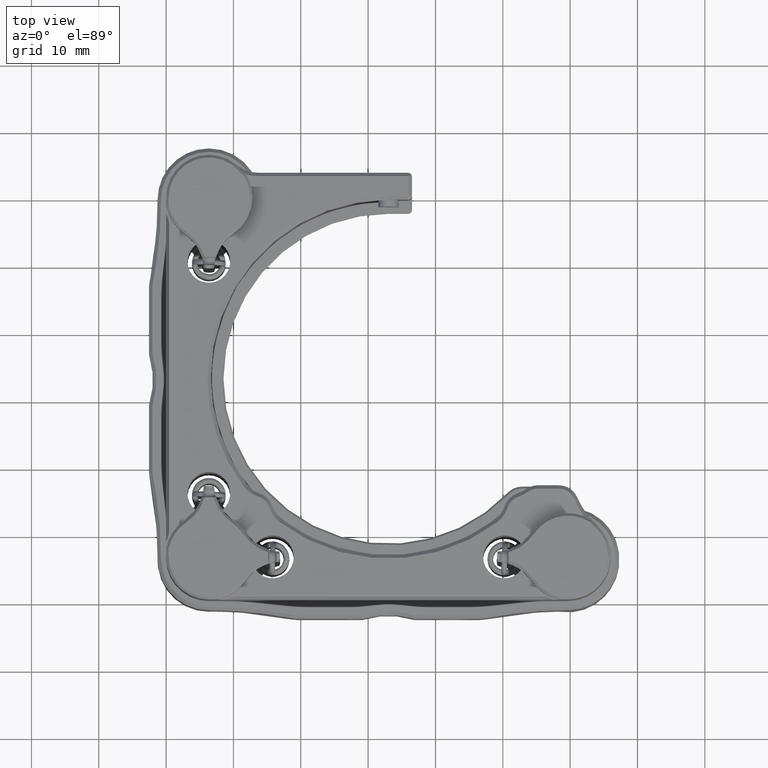
[diagram: clean part render]
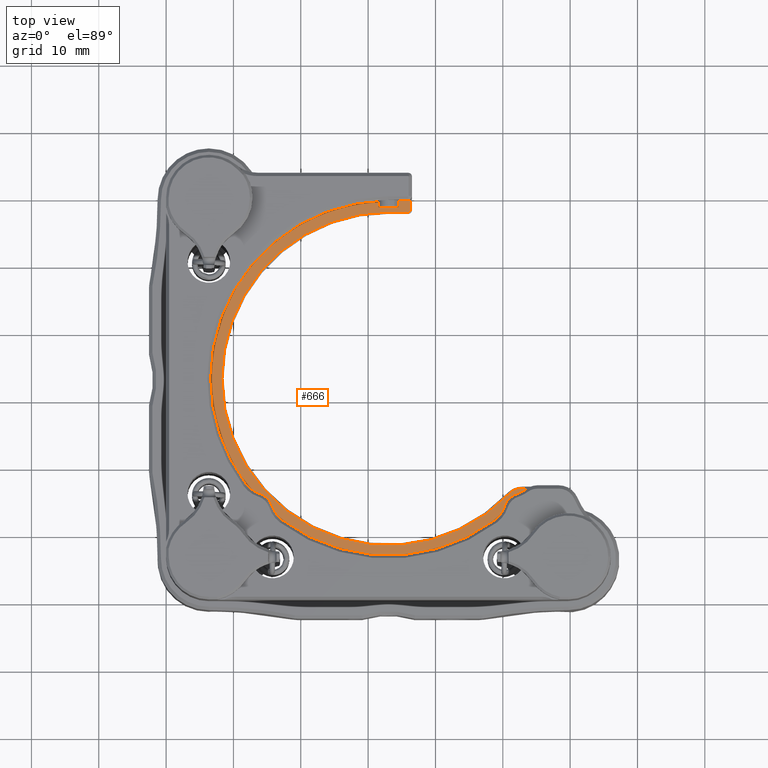
[diagram: same view with one face highlighted and labeled with its STEP entity id]
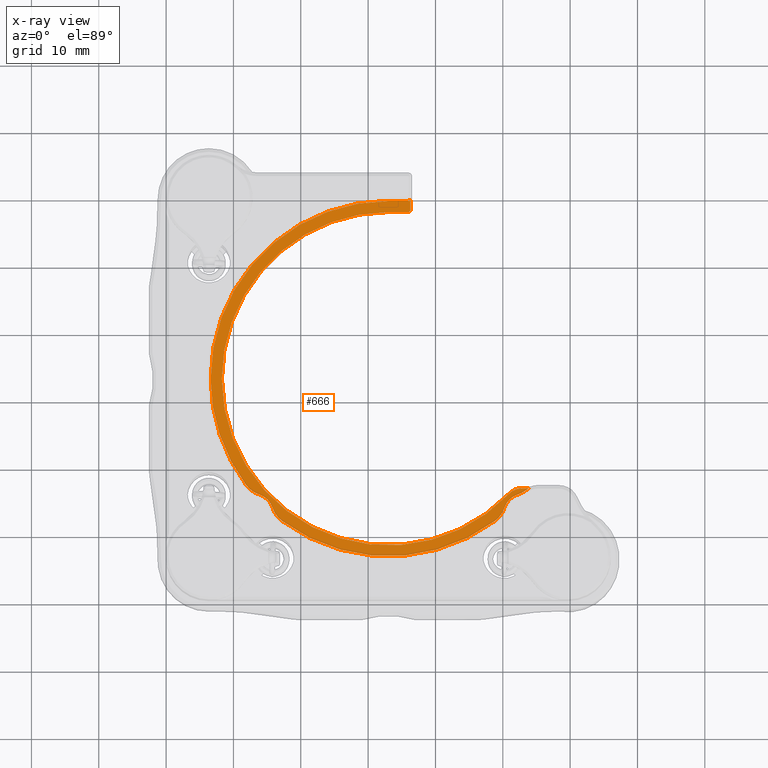
[diagram: x-ray of the same camera — body ghosted, the highlighted face saturated]
A machine part, top view. The second image highlights one B-rep face of the part: STEP entity #666.
The next image is the same camera in x-ray: the body ghosted, the highlighted face saturated — about 0% of this face is hidden behind the body in this view.
In plain terms, the highlighted planar face has unit normal (0, 0, -1).
Its self-contained STEP definition (entity closure, byte-faithful):
#115 = EDGE_CURVE ( 'NONE', #711, #24314, #26546, .T. ) ;
#204 = CARTESIAN_POINT ( 'NONE',  ( -40.66343117310604072, 65.37924649506375374, 40.77856876018478971 ) ) ;
#661 = CARTESIAN_POINT ( 'NONE',  ( -43.56343117310596114, 67.02924649506375943, 40.77856876018478971 ) ) ;
#666 = ADVANCED_FACE ( 'NONE', ( #8977 ), #9119, .F. ) ;
#667 = ORIENTED_EDGE ( 'NONE', *, *, #22050, .F. ) ;
#711 = VERTEX_POINT ( 'NONE', #13788 ) ;
#807 = ORIENTED_EDGE ( 'NONE', *, *, #26933, .F. ) ;
#868 = CIRCLE ( 'NONE', #1335, 26.39999999999999858 ) ;
#918 = LINE ( 'NONE', #14822, #22953 ) ;
#1026 = DIRECTION ( 'NONE',  ( -1.000000000000000000, 0.000000000000000000, 0.000000000000000000 ) ) ;
#1040 = CARTESIAN_POINT ( 'NONE',  ( -23.43713678394122724, 21.46714300433859535, 40.77856876018478971 ) ) ;
#1118 = VERTEX_POINT ( 'NONE', #24057 ) ;
#1320 = VERTEX_POINT ( 'NONE', #5804 ) ;
#1335 = AXIS2_PLACEMENT_3D ( 'NONE', #9348, #7298, #4962 ) ;
#1341 = AXIS2_PLACEMENT_3D ( 'NONE', #24877, #2983, #9704 ) ;
#1408 = DIRECTION ( 'NONE',  ( -0.000000000000000000, -0.000000000000000000, -1.000000000000000000 ) ) ;
#1659 = ORIENTED_EDGE ( 'NONE', *, *, #13855, .F. ) ;
#2049 = VECTOR ( 'NONE', #2855, 1000.000000000000000 ) ;
#2240 = CARTESIAN_POINT ( 'NONE',  ( -40.66343117310594124, 40.62924649506374664, 40.77856876018478971 ) ) ;
#2301 = DIRECTION ( 'NONE',  ( 0.000000000000000000, 0.000000000000000000, 1.000000000000000000 ) ) ;
#2855 = DIRECTION ( 'NONE',  ( -1.000000000000000000, -7.805279981897899840E-16, 0.000000000000000000 ) ) ;
#2983 = DIRECTION ( 'NONE',  ( 0.000000000000000000, 0.000000000000000000, 1.000000000000000000 ) ) ;
#3117 = EDGE_CURVE ( 'NONE', #26238, #25586, #11966, .T. ) ;
#4242 = CIRCLE ( 'NONE', #20557, 4.000000000000000000 ) ;
#4264 = DIRECTION ( 'NONE',  ( -1.000000000000000000, -1.734723475976807094E-15, 0.000000000000000000 ) ) ;
#4962 = DIRECTION ( 'NONE',  ( -1.000000000000000000, -7.885106708985487062E-16, 0.000000000000000000 ) ) ;
#4963 = EDGE_CURVE ( 'NONE', #10287, #15075, #918, .T. ) ;
#4985 = CARTESIAN_POINT ( 'NONE',  ( -19.52481206542267600, 24.81410241667204986, 40.77856876018478971 ) ) ;
#5008 = AXIS2_PLACEMENT_3D ( 'NONE', #9299, #20824, #12058 ) ;
#5772 = ORIENTED_EDGE ( 'NONE', *, *, #4963, .F. ) ;
#5804 = CARTESIAN_POINT ( 'NONE',  ( -14.26343117310593911, 40.62924649506376795, 40.77856876018478971 ) ) ;
#6192 = ORIENTED_EDGE ( 'NONE', *, *, #8137, .F. ) ;
#6200 = EDGE_CURVE ( 'NONE', #9984, #24850, #15008, .T. ) ;
#6389 = DIRECTION ( 'NONE',  ( 0.000000000000000000, 0.000000000000000000, 1.000000000000000000 ) ) ;
#6394 = ORIENTED_EDGE ( 'NONE', *, *, #3117, .F. ) ;
#6421 = VERTEX_POINT ( 'NONE', #11036 ) ;
#6823 = CARTESIAN_POINT ( 'NONE',  ( -59.83096927332034909, 23.40469681342246488, 40.77856876018478971 ) ) ;
#6832 = DIRECTION ( 'NONE',  ( -1.000000000000000000, -1.261617073437676668E-15, 0.000000000000000000 ) ) ;
#6935 = CIRCLE ( 'NONE', #9729, 4.000000000000000000 ) ;
#6988 = DIRECTION ( 'NONE',  ( 0.000000000000000000, 0.000000000000000000, 1.000000000000000000 ) ) ;
#7298 = DIRECTION ( 'NONE',  ( 0.000000000000000000, 0.000000000000000000, 1.000000000000000000 ) ) ;
#8137 = EDGE_CURVE ( 'NONE', #15075, #26238, #12416, .T. ) ;
#8142 = CARTESIAN_POINT ( 'NONE',  ( -43.56343117310596114, 67.62924649506375374, 40.77856876018478971 ) ) ;
#8635 = DIRECTION ( 'NONE',  ( 0.000000000000000000, 0.000000000000000000, 1.000000000000000000 ) ) ;
#8812 = ORIENTED_EDGE ( 'NONE', *, *, #28173, .F. ) ;
#8977 = FACE_OUTER_BOUND ( 'NONE', #28239, .T. ) ;
#9119 = PLANE ( 'NONE',  #25174 ) ;
#9162 = CARTESIAN_POINT ( 'NONE',  ( -27.24452104598561775, 22.69344846430225360, 40.77856876018478971 ) ) ;
#9260 = VECTOR ( 'NONE', #10891, 1000.000000000000000 ) ;
#9299 = CARTESIAN_POINT ( 'NONE',  ( -60.74526375880390106, 20.54741390936581880, 40.77856876018478971 ) ) ;
#9342 = ORIENTED_EDGE ( 'NONE', *, *, #24324, .F. ) ;
#9348 = CARTESIAN_POINT ( 'NONE',  ( -40.66343117310594124, 40.62924649506374664, 40.77856876018478971 ) ) ;
#9704 = DIRECTION ( 'NONE',  ( -1.000000000000000000, -8.673617379884027583E-16, 0.000000000000000000 ) ) ;
#9729 = AXIS2_PLACEMENT_3D ( 'NONE', #9162, #13985, #27411 ) ;
#9805 = VECTOR ( 'NONE', #13566, 1000.000000000000000 ) ;
#9820 = AXIS2_PLACEMENT_3D ( 'NONE', #23750, #10034, #18970 ) ;
#9984 = VERTEX_POINT ( 'NONE', #661 ) ;
#10034 = DIRECTION ( 'NONE',  ( -0.000000000000000000, -0.000000000000000000, -1.000000000000000000 ) ) ;
#10287 = VERTEX_POINT ( 'NONE', #10456 ) ;
#10456 = CARTESIAN_POINT ( 'NONE',  ( -43.56343117310596824, 65.37924649506375374, 40.77856876018478971 ) ) ;
#10593 = EDGE_CURVE ( 'NONE', #6421, #10287, #13394, .T. ) ;
#10685 = VERTEX_POINT ( 'NONE', #15061 ) ;
#10696 = AXIS2_PLACEMENT_3D ( 'NONE', #13856, #6988, #26993 ) ;
#10891 = DIRECTION ( 'NONE',  ( -1.000000000000000000, -7.805279981897899840E-16, 0.000000000000000000 ) ) ;
#11036 = CARTESIAN_POINT ( 'NONE',  ( -43.91343117310596256, 65.72924649506376227, 40.77856876018478971 ) ) ;
#11154 = DIRECTION ( 'NONE',  ( 0.000000000000000000, 0.000000000000000000, 1.000000000000000000 ) ) ;
#11177 = DIRECTION ( 'NONE',  ( -0.000000000000000000, -0.000000000000000000, -1.000000000000000000 ) ) ;
#11307 = VERTEX_POINT ( 'NONE', #6823 ) ;
#11319 = EDGE_CURVE ( 'NONE', #24416, #16973, #6935, .T. ) ;
#11885 = DIRECTION ( 'NONE',  ( -0.000000000000000000, -0.000000000000000000, -1.000000000000000000 ) ) ;
#11966 = CIRCLE ( 'NONE', #20367, 24.75000000000000000 ) ;
#12058 = DIRECTION ( 'NONE',  ( -1.000000000000000000, -1.156482317317870344E-15, 0.000000000000000000 ) ) ;
#12141 = DIRECTION ( 'NONE',  ( 0.000000000000000000, 0.000000000000000000, 1.000000000000000000 ) ) ;
#12373 = ORIENTED_EDGE ( 'NONE', *, *, #28424, .F. ) ;
#12416 = CIRCLE ( 'NONE', #28295, 24.75000000000000000 ) ;
#12467 = EDGE_CURVE ( 'NONE', #16208, #11307, #24199, .T. ) ;
#13202 = DIRECTION ( 'NONE',  ( 0.000000000000000000, 0.000000000000000000, 1.000000000000000000 ) ) ;
#13339 = CARTESIAN_POINT ( 'NONE',  ( -61.60606211356250839, 24.35924649506373996, 40.77856876018478971 ) ) ;
#13346 = CARTESIAN_POINT ( 'NONE',  ( -40.66343117310594124, 40.62924649506374664, 40.77856876018478971 ) ) ;
#13394 = CIRCLE ( 'NONE', #25489, 0.3500000000000030864 ) ;
#13566 = DIRECTION ( 'NONE',  ( 6.648797664580028115E-16, -1.000000000000000000, 0.000000000000000000 ) ) ;
#13788 = CARTESIAN_POINT ( 'NONE',  ( -57.88972556227060551, 21.46714300433857048, 40.77856876018478971 ) ) ;
#13819 = LINE ( 'NONE', #27113, #2049 ) ;
#13855 = EDGE_CURVE ( 'NONE', #24314, #24416, #868, .T. ) ;
#13856 = CARTESIAN_POINT ( 'NONE',  ( -54.08234130022623987, 22.69344846430223939, 40.77856876018478971 ) ) ;
#13985 = DIRECTION ( 'NONE',  ( 0.000000000000000000, 0.000000000000000000, 1.000000000000000000 ) ) ;
#14325 = CARTESIAN_POINT ( 'NONE',  ( -43.91343117310596256, 67.14190677782330852, 40.77856876018478971 ) ) ;
#14395 = EDGE_CURVE ( 'NONE', #25586, #10685, #25125, .T. ) ;
#14593 = ORIENTED_EDGE ( 'NONE', *, *, #23808, .F. ) ;
#14822 = CARTESIAN_POINT ( 'NONE',  ( -40.66343117310586308, 65.37924649506375374, 40.77856876018478971 ) ) ;
#14885 = CIRCLE ( 'NONE', #5008, 3.000000000000002665 ) ;
#14917 = EDGE_CURVE ( 'NONE', #1118, #9984, #20091, .T. ) ;
#15008 = CIRCLE ( 'NONE', #26190, 0.6000000000000033085 ) ;
#15061 = CARTESIAN_POINT ( 'NONE',  ( -60.52519343127426055, 24.35924649506373996, 40.77856876018478971 ) ) ;
#15075 = VERTEX_POINT ( 'NONE', #204 ) ;
#15576 = ORIENTED_EDGE ( 'NONE', *, *, #11319, .F. ) ;
#15783 = EDGE_CURVE ( 'NONE', #24850, #6421, #26693, .T. ) ;
#15823 = DIRECTION ( 'NONE',  ( -1.000000000000000000, -7.805279981897899840E-16, 0.000000000000000000 ) ) ;
#16208 = VERTEX_POINT ( 'NONE', #22704 ) ;
#16973 = VERTEX_POINT ( 'NONE', #1040 ) ;
#17045 = DIRECTION ( 'NONE',  ( -1.000000000000000000, 0.000000000000000000, 0.000000000000000000 ) ) ;
#17132 = AXIS2_PLACEMENT_3D ( 'NONE', #22134, #19834, #26519 ) ;
#17550 = CARTESIAN_POINT ( 'NONE',  ( -21.50132768238069758, 23.40295210589914632, 40.77856876018478971 ) ) ;
#18052 = CARTESIAN_POINT ( 'NONE',  ( -40.66343117310594124, 40.62924649506374664, 40.77856876018478971 ) ) ;
#18244 = VERTEX_POINT ( 'NONE', #4985 ) ;
#18375 = ORIENTED_EDGE ( 'NONE', *, *, #6200, .F. ) ;
#18970 = DIRECTION ( 'NONE',  ( -1.000000000000000000, -1.156482317317870344E-15, 0.000000000000000000 ) ) ;
#18996 = CIRCLE ( 'NONE', #22681, 26.39999999999999858 ) ;
#19571 = AXIS2_PLACEMENT_3D ( 'NONE', #26401, #2301, #6832 ) ;
#19641 = VERTEX_POINT ( 'NONE', #17550 ) ;
#19694 = DIRECTION ( 'NONE',  ( -1.000000000000000000, -7.885106708985487062E-16, 0.000000000000000000 ) ) ;
#19834 = DIRECTION ( 'NONE',  ( -0.000000000000000000, -0.000000000000000000, -1.000000000000000000 ) ) ;
#20064 = ORIENTED_EDGE ( 'NONE', *, *, #115, .F. ) ;
#20071 = DIRECTION ( 'NONE',  ( -1.000000000000000000, 1.051347561198065007E-15, 0.000000000000000000 ) ) ;
#20082 = CIRCLE ( 'NONE', #9820, 3.000000000000002665 ) ;
#20091 = LINE ( 'NONE', #23888, #9260 ) ;
#20221 = CARTESIAN_POINT ( 'NONE',  ( -43.56343117310596114, 65.72924649506376227, 40.77856876018478971 ) ) ;
#20367 = AXIS2_PLACEMENT_3D ( 'NONE', #25442, #11885, #20778 ) ;
#20557 = AXIS2_PLACEMENT_3D ( 'NONE', #28804, #8635, #4264 ) ;
#20778 = DIRECTION ( 'NONE',  ( -1.000000000000000000, -8.410780489584519664E-16, 0.000000000000000000 ) ) ;
#20824 = DIRECTION ( 'NONE',  ( -0.000000000000000000, -0.000000000000000000, -1.000000000000000000 ) ) ;
#20848 = CIRCLE ( 'NONE', #17132, 3.000000000000002665 ) ;
#21201 = EDGE_CURVE ( 'NONE', #16973, #19641, #20082, .T. ) ;
#21597 = VERTEX_POINT ( 'NONE', #13339 ) ;
#22050 = EDGE_CURVE ( 'NONE', #19641, #18244, #4242, .T. ) ;
#22131 = CARTESIAN_POINT ( 'NONE',  ( -40.66343117310594124, 40.62924649506374664, 40.77856876018478971 ) ) ;
#22134 = CARTESIAN_POINT ( 'NONE',  ( -62.80501999439066907, 21.60924649506373285, 40.77856876018478971 ) ) ;
#22681 = AXIS2_PLACEMENT_3D ( 'NONE', #2240, #11154, #20071 ) ;
#22704 = CARTESIAN_POINT ( 'NONE',  ( -61.00797283651278491, 24.01145829096412854, 40.77856876018478971 ) ) ;
#22953 = VECTOR ( 'NONE', #23699, 1000.000000000000000 ) ;
#23699 = DIRECTION ( 'NONE',  ( 1.000000000000000000, -3.184554232614439336E-15, 0.000000000000000000 ) ) ;
#23750 = CARTESIAN_POINT ( 'NONE',  ( -20.58159858740793524, 20.54741390936585432, 40.77856876018478971 ) ) ;
#23761 = CARTESIAN_POINT ( 'NONE',  ( -56.47857525149771618, 19.49062738738054890, 40.77856876018478971 ) ) ;
#23762 = ORIENTED_EDGE ( 'NONE', *, *, #21201, .F. ) ;
#23808 = EDGE_CURVE ( 'NONE', #18244, #1320, #18996, .T. ) ;
#23888 = CARTESIAN_POINT ( 'NONE',  ( -40.66343117310596256, 67.02924649506377364, 40.77856876018478971 ) ) ;
#23940 = CIRCLE ( 'NONE', #27687, 26.39999999999999858 ) ;
#24057 = CARTESIAN_POINT ( 'NONE',  ( -40.66343117310596256, 67.02924649506377364, 40.77856876018478971 ) ) ;
#24199 = CIRCLE ( 'NONE', #1341, 4.000000000000003553 ) ;
#24201 = CARTESIAN_POINT ( 'NONE',  ( -43.91343117310594835, 40.62924649506374664, 40.77856876018478971 ) ) ;
#24314 = VERTEX_POINT ( 'NONE', #23761 ) ;
#24324 = EDGE_CURVE ( 'NONE', #21597, #16208, #20848, .T. ) ;
#24416 = VERTEX_POINT ( 'NONE', #26252 ) ;
#24850 = VERTEX_POINT ( 'NONE', #14325 ) ;
#24877 = CARTESIAN_POINT ( 'NONE',  ( -58.61190995934226322, 27.21440735216465256, 40.77856876018478971 ) ) ;
#25125 = CIRCLE ( 'NONE', #19571, 2.750000000000002665 ) ;
#25174 = AXIS2_PLACEMENT_3D ( 'NONE', #13346, #13202, #15823 ) ;
#25442 = CARTESIAN_POINT ( 'NONE',  ( -40.66343117310594124, 40.62924649506374664, 40.77856876018478971 ) ) ;
#25489 = AXIS2_PLACEMENT_3D ( 'NONE', #20221, #12141, #1026 ) ;
#25545 = CARTESIAN_POINT ( 'NONE',  ( -58.53901720545742648, 23.51124649506373743, 40.77856876018478971 ) ) ;
#25586 = VERTEX_POINT ( 'NONE', #25545 ) ;
#25800 = ORIENTED_EDGE ( 'NONE', *, *, #10593, .F. ) ;
#26190 = AXIS2_PLACEMENT_3D ( 'NONE', #8142, #1408, #17045 ) ;
#26238 = VERTEX_POINT ( 'NONE', #28017 ) ;
#26252 = CARTESIAN_POINT ( 'NONE',  ( -24.84828709471413433, 19.49062738738056666, 40.77856876018478971 ) ) ;
#26401 = CARTESIAN_POINT ( 'NONE',  ( -60.52519343127426055, 21.60924649506373640, 40.77856876018478971 ) ) ;
#26519 = DIRECTION ( 'NONE',  ( -1.000000000000000000, -1.156482317317870344E-15, 0.000000000000000000 ) ) ;
#26546 = CIRCLE ( 'NONE', #10696, 4.000000000000003553 ) ;
#26624 = ORIENTED_EDGE ( 'NONE', *, *, #12467, .F. ) ;
#26693 = LINE ( 'NONE', #24201, #9805 ) ;
#26796 = DIRECTION ( 'NONE',  ( -1.000000000000000000, -8.410780489584519664E-16, 0.000000000000000000 ) ) ;
#26933 = EDGE_CURVE ( 'NONE', #11307, #711, #14885, .T. ) ;
#26993 = DIRECTION ( 'NONE',  ( -1.000000000000000000, 0.000000000000000000, 0.000000000000000000 ) ) ;
#27113 = CARTESIAN_POINT ( 'NONE',  ( -40.66343117310592703, 24.35924649506375417, 40.77856876018478971 ) ) ;
#27126 = ORIENTED_EDGE ( 'NONE', *, *, #14395, .F. ) ;
#27411 = DIRECTION ( 'NONE',  ( -1.000000000000000000, -8.673617379884035472E-16, 0.000000000000000000 ) ) ;
#27645 = ORIENTED_EDGE ( 'NONE', *, *, #14917, .F. ) ;
#27687 = AXIS2_PLACEMENT_3D ( 'NONE', #22131, #6389, #19694 ) ;
#28017 = CARTESIAN_POINT ( 'NONE',  ( -15.91343117310594124, 40.62924649506376795, 40.77856876018478971 ) ) ;
#28173 = EDGE_CURVE ( 'NONE', #1320, #1118, #23940, .T. ) ;
#28239 = EDGE_LOOP ( 'NONE', ( #18375, #27645, #8812, #14593, #667, #23762, #15576, #1659, #20064, #807, #26624, #9342, #12373, #27126, #6394, #6192, #5772, #25800, #28594 ) ) ;
#28295 = AXIS2_PLACEMENT_3D ( 'NONE', #18052, #11177, #26796 ) ;
#28424 = EDGE_CURVE ( 'NONE', #10685, #21597, #13819, .T. ) ;
#28594 = ORIENTED_EDGE ( 'NONE', *, *, #15783, .F. ) ;
#28804 = CARTESIAN_POINT ( 'NONE',  ( -22.72763314234438425, 27.21033636794351906, 40.77856876018478971 ) ) ;